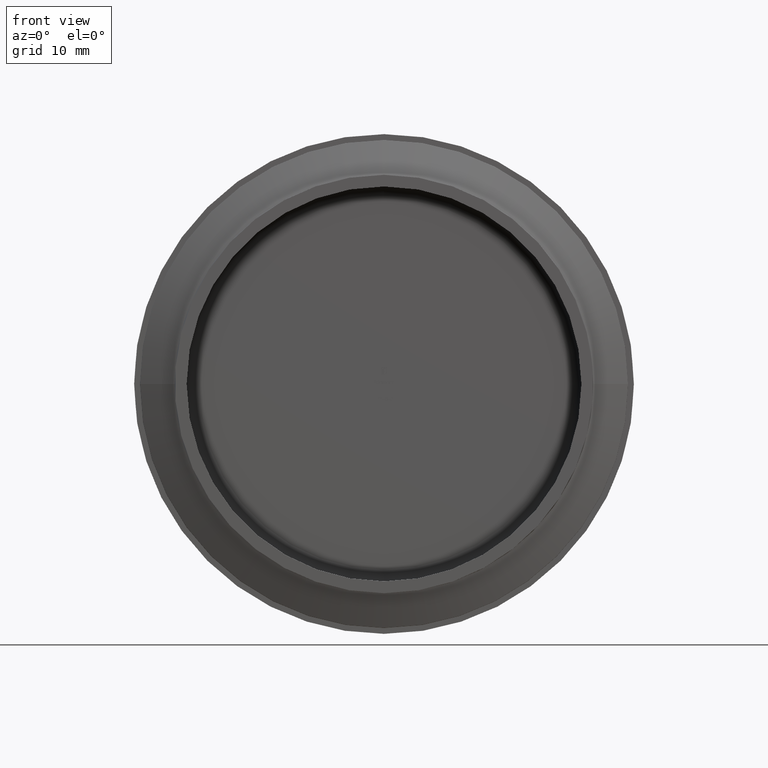
[diagram: clean part render]
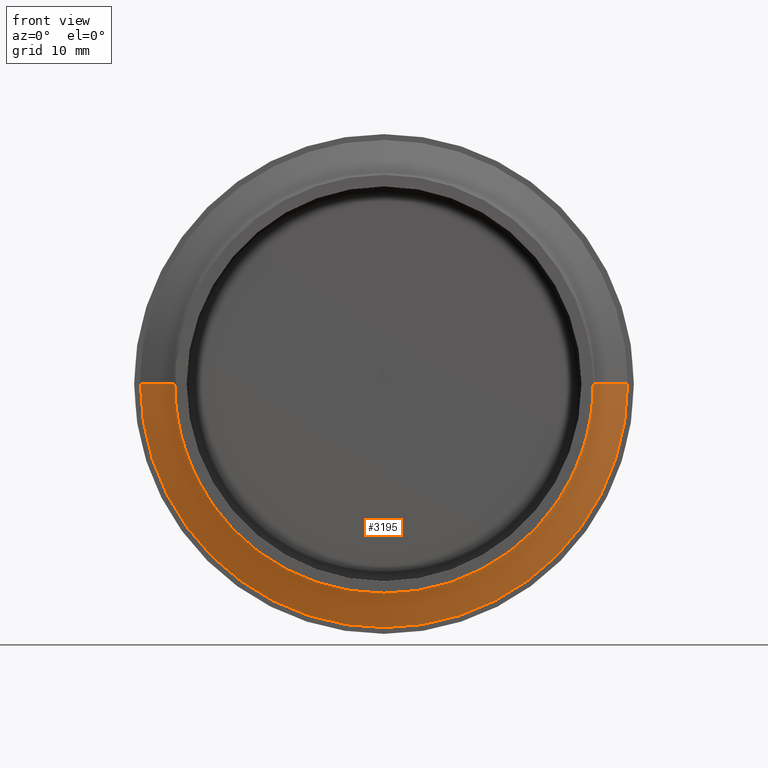
[diagram: same view with one face highlighted and labeled with its STEP entity id]
A machine part, front view. The second image highlights one B-rep face of the part: STEP entity #3195.
In plain terms, the highlighted conical surface has half-angle 67.59 deg.
Its self-contained STEP definition (entity closure, byte-faithful):
#564 = DIRECTION ( 'NONE',  ( -1.047444401652940164E-14, 1.000000000000000000, 0.000000000000000000 ) ) ;
#832 = CARTESIAN_POINT ( 'NONE',  ( -1.361677722148594501E-14, 1.299999999999782663, 0.000000000000000000 ) ) ;
#1059 = AXIS2_PLACEMENT_3D ( 'NONE', #4394, #564, #11953 ) ;
#1250 = VERTEX_POINT ( 'NONE', #10272 ) ;
#1463 = AXIS2_PLACEMENT_3D ( 'NONE', #7341, #2493, #5326 ) ;
#1862 = EDGE_CURVE ( 'NONE', #8610, #8593, #9452, .T. ) ;
#2133 = CARTESIAN_POINT ( 'NONE',  ( -17.75000000000000711, 1.299999999999596811, 0.000000000000000000 ) ) ;
#2493 = DIRECTION ( 'NONE',  ( 1.047444401652940164E-14, -1.000000000000000000, -0.000000000000000000 ) ) ;
#2805 = EDGE_CURVE ( 'NONE', #8610, #1250, #9423, .T. ) ;
#2816 = DIRECTION ( 'NONE',  ( -1.047444401652940164E-14, 1.000000000000000000, 0.000000000000000000 ) ) ;
#2972 = DIRECTION ( 'NONE',  ( 0.9244762069923483372, 0.3812397443932633023, 1.132156827781070273E-16 ) ) ;
#3195 = ADVANCED_FACE ( 'NONE', ( #8652 ), #4155, .T. ) ;
#3566 = CARTESIAN_POINT ( 'NONE',  ( -1.361677722148627475E-14, 1.299999999999814193, 0.000000000000000000 ) ) ;
#3751 = ORIENTED_EDGE ( 'NONE', *, *, #11937, .T. ) ;
#4155 = CONICAL_SURFACE ( 'NONE', #5232, 17.75000000000007105, 1.179659376938436921 ) ;
#4233 = DIRECTION ( 'NONE',  ( -0.9244762069923562198, 0.3812397443932439289, 0.000000000000000000 ) ) ;
#4269 = CIRCLE ( 'NONE', #1059, 17.74999999999999645 ) ;
#4394 = CARTESIAN_POINT ( 'NONE',  ( -1.361677722148594501E-14, 1.299999999999782663, 0.000000000000000000 ) ) ;
#5232 = AXIS2_PLACEMENT_3D ( 'NONE', #3566, #6268, #11362 ) ;
#5326 = DIRECTION ( 'NONE',  ( 1.000000000000000000, 1.047008102070219323E-14, 0.000000000000000000 ) ) ;
#5606 = EDGE_CURVE ( 'NONE', #8593, #7715, #4269, .T. ) ;
#5687 = ORIENTED_EDGE ( 'NONE', *, *, #1862, .T. ) ;
#5865 = EDGE_LOOP ( 'NONE', ( #10599, #5687, #11716, #3751, #7921 ) ) ;
#6022 = EDGE_CURVE ( 'NONE', #10159, #1250, #12029, .T. ) ;
#6268 = DIRECTION ( 'NONE',  ( -1.047444401652940164E-14, 1.000000000000000000, 0.000000000000000000 ) ) ;
#6490 = DIRECTION ( 'NONE',  ( -1.000000000000000000, -1.046942266839523914E-14, 0.000000000000000000 ) ) ;
#6592 = AXIS2_PLACEMENT_3D ( 'NONE', #832, #2816, #6490 ) ;
#7288 = VECTOR ( 'NONE', #4233, 1000.000000000000114 ) ;
#7341 = CARTESIAN_POINT ( 'NONE',  ( -2.622566352841031157E-14, 2.503776189650198880, 0.000000000000000000 ) ) ;
#7583 = CARTESIAN_POINT ( 'NONE',  ( -20.66906198721978072, 2.503776189649982609, 0.000000000000000000 ) ) ;
#7715 = VERTEX_POINT ( 'NONE', #2133 ) ;
#7921 = ORIENTED_EDGE ( 'NONE', *, *, #6022, .T. ) ;
#8588 = CARTESIAN_POINT ( 'NONE',  ( 17.75000000000005684, 1.300000000000000044, 2.173748068486560713E-15 ) ) ;
#8593 = VERTEX_POINT ( 'NONE', #11047 ) ;
#8610 = VERTEX_POINT ( 'NONE', #10245 ) ;
#8652 = FACE_OUTER_BOUND ( 'NONE', #5865, .T. ) ;
#9011 = CARTESIAN_POINT ( 'NONE',  ( -17.75000000000008527, 1.299999999999628342, 0.000000000000000000 ) ) ;
#9423 = LINE ( 'NONE', #8588, #11654 ) ;
#9452 = CIRCLE ( 'NONE', #6592, 17.74999999999999645 ) ;
#10159 = VERTEX_POINT ( 'NONE', #7583 ) ;
#10245 = CARTESIAN_POINT ( 'NONE',  ( 17.74999999999998224, 1.299999999999968514, 2.352489064444620883E-15 ) ) ;
#10272 = CARTESIAN_POINT ( 'NONE',  ( 20.66906198721972387, 2.503776189650415152, 2.531230060402690125E-15 ) ) ;
#10599 = ORIENTED_EDGE ( 'NONE', *, *, #2805, .F. ) ;
#10724 = LINE ( 'NONE', #9011, #7288 ) ;
#11047 = CARTESIAN_POINT ( 'NONE',  ( -4.622231866529366047E-30, 1.299999999999782663, -17.74999999999999645 ) ) ;
#11362 = DIRECTION ( 'NONE',  ( -1.000000000000000000, -1.046942266839519496E-14, 0.000000000000000000 ) ) ;
#11654 = VECTOR ( 'NONE', #2972, 1000.000000000000000 ) ;
#11716 = ORIENTED_EDGE ( 'NONE', *, *, #5606, .T. ) ;
#11937 = EDGE_CURVE ( 'NONE', #7715, #10159, #10724, .T. ) ;
#11953 = DIRECTION ( 'NONE',  ( -1.000000000000000000, -1.046942266839523914E-14, 0.000000000000000000 ) ) ;
#12029 = CIRCLE ( 'NONE', #1463, 20.66906198721975230 ) ;